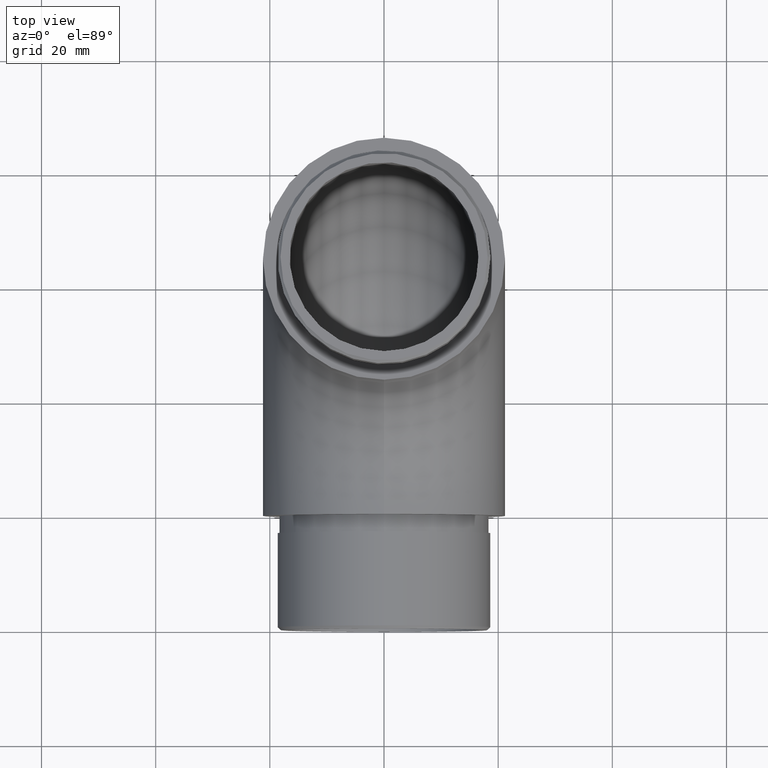
[diagram: clean part render]
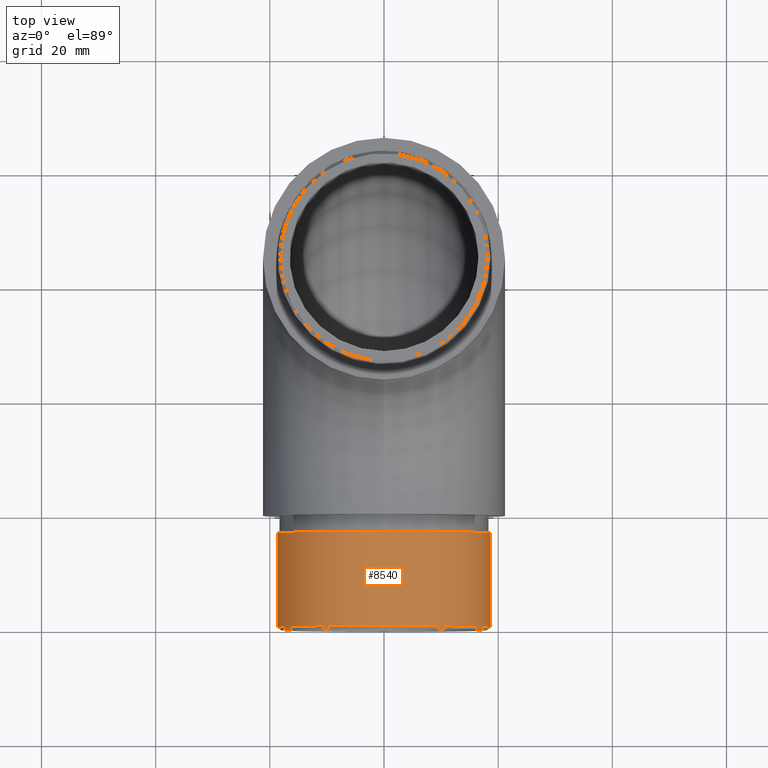
[diagram: same view with one face highlighted and labeled with its STEP entity id]
A machine part, top view. The second image highlights one B-rep face of the part: STEP entity #8540.
In plain terms, the highlighted cylindrical surface (bore or boss wall) has radius 18.65 mm, axis along (-0, 1, -0).
Its self-contained STEP definition (entity closure, byte-faithful):
#57 = EDGE_CURVE ( 'NONE', #3377, #3377, #7595, .T. ) ;
#428 = DIRECTION ( 'NONE',  ( 0.0000000000000000000, 0.0000000000000000000, 1.000000000000000000 ) ) ;
#581 = CYLINDRICAL_SURFACE ( 'NONE', #8275, 18.64999999999999900 ) ;
#906 = FACE_OUTER_BOUND ( 'NONE', #3582, .T. ) ;
#1834 = CARTESIAN_POINT ( 'NONE',  ( 0.0000000000000000000, -3.000000000000000000, 21.20000000000000300 ) ) ;
#1934 = DIRECTION ( 'NONE',  ( 0.0000000000000000000, -1.000000000000000000, 0.0000000000000000000 ) ) ;
#3144 = CARTESIAN_POINT ( 'NONE',  ( 0.0000000000000000000, -19.50000000000001100, 2.550000000000003800 ) ) ;
#3184 = CARTESIAN_POINT ( 'NONE',  ( 0.0000000000000000000, -3.000000000000000000, 2.550000000000003800 ) ) ;
#3377 = VERTEX_POINT ( 'NONE', #3184 ) ;
#3582 = EDGE_LOOP ( 'NONE', ( #9938 ) ) ;
#3663 = DIRECTION ( 'NONE',  ( -0.0000000000000000000, 1.000000000000000000, -0.0000000000000000000 ) ) ;
#4969 = DIRECTION ( 'NONE',  ( 0.0000000000000000000, 0.0000000000000000000, -1.000000000000000000 ) ) ;
#5206 = AXIS2_PLACEMENT_3D ( 'NONE', #6751, #8692, #9890 ) ;
#5366 = VERTEX_POINT ( 'NONE', #3144 ) ;
#5447 = EDGE_CURVE ( 'NONE', #5366, #5366, #9822, .T. ) ;
#5863 = AXIS2_PLACEMENT_3D ( 'NONE', #1834, #1934, #4969 ) ;
#6751 = CARTESIAN_POINT ( 'NONE',  ( 0.0000000000000000000, -19.50000000000001100, 21.20000000000000300 ) ) ;
#6755 = CARTESIAN_POINT ( 'NONE',  ( 0.0000000000000000000, -20.00000000000000000, 21.20000000000000300 ) ) ;
#7595 = CIRCLE ( 'NONE', #5863, 18.64999999999999900 ) ;
#7644 = FACE_OUTER_BOUND ( 'NONE', #8620, .T. ) ;
#8275 = AXIS2_PLACEMENT_3D ( 'NONE', #6755, #3663, #428 ) ;
#8540 = ADVANCED_FACE ( 'NONE', ( #906, #7644 ), #581, .T. ) ;
#8620 = EDGE_LOOP ( 'NONE', ( #9658 ) ) ;
#8692 = DIRECTION ( 'NONE',  ( 0.0000000000000000000, 1.000000000000000000, 0.0000000000000000000 ) ) ;
#9658 = ORIENTED_EDGE ( 'NONE', *, *, #57, .T. ) ;
#9822 = CIRCLE ( 'NONE', #5206, 18.64999999999999900 ) ;
#9890 = DIRECTION ( 'NONE',  ( 0.0000000000000000000, 0.0000000000000000000, -1.000000000000000000 ) ) ;
#9938 = ORIENTED_EDGE ( 'NONE', *, *, #5447, .T. ) ;